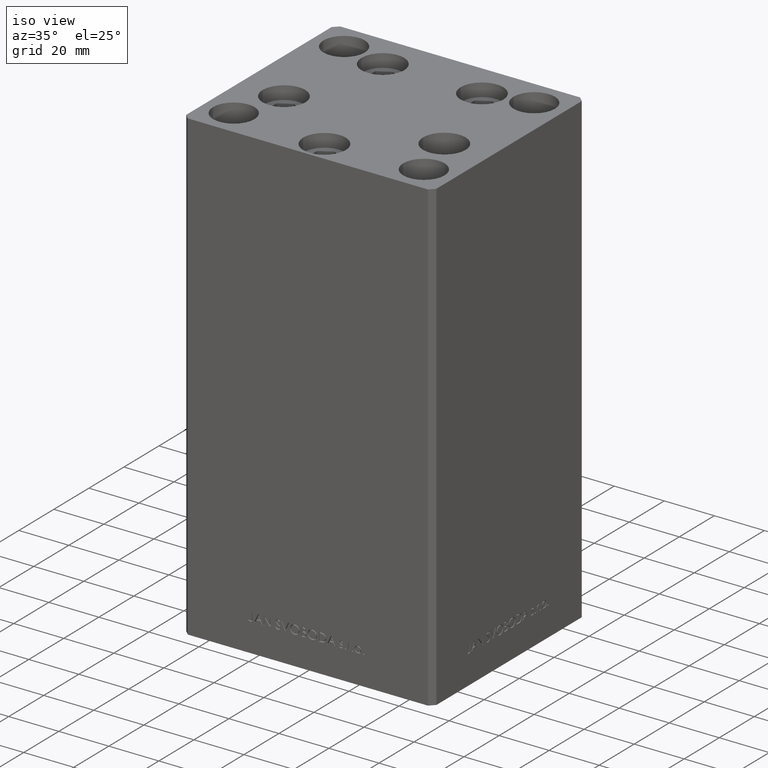
[diagram: clean part render]
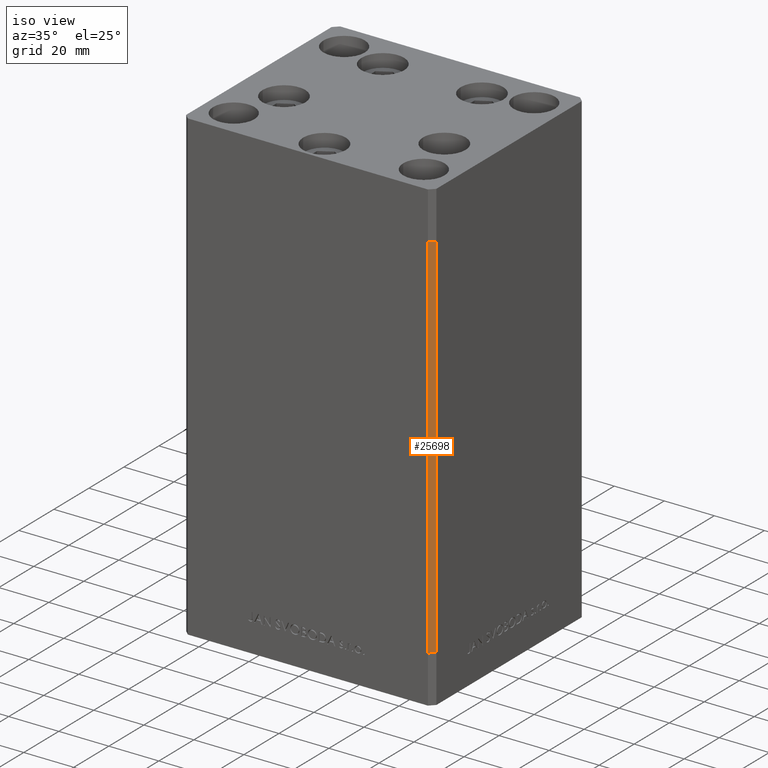
[diagram: same view with one face highlighted and labeled with its STEP entity id]
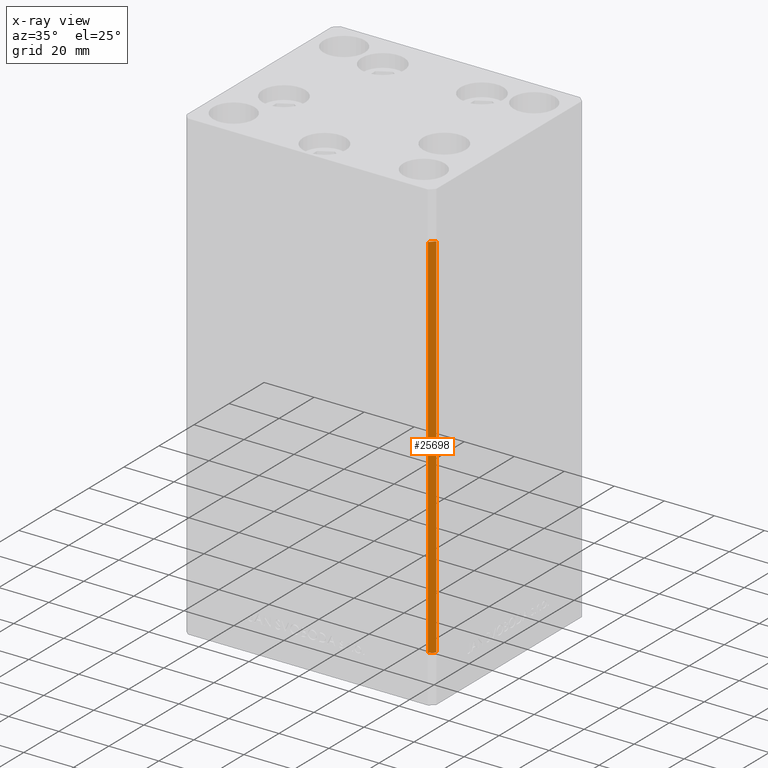
[diagram: x-ray of the same camera — body ghosted, the highlighted face saturated]
A machine part, iso view. The second image highlights one B-rep face of the part: STEP entity #25698.
The next image is the same camera in x-ray: the body ghosted, the highlighted face saturated — about 0% of this face is hidden behind the body in this view.
In plain terms, the highlighted planar face has unit normal (0.7071, -0.7071, 0).
Its self-contained STEP definition (entity closure, byte-faithful):
#1086 = DIRECTION ( 'NONE',  ( 0.7071067811865474617, 0.7071067811865474617, 0.000000000000000000 ) ) ;
#2212 = DIRECTION ( 'NONE',  ( -0.000000000000000000, -0.000000000000000000, -1.000000000000000000 ) ) ;
#4624 = EDGE_LOOP ( 'NONE', ( #39109, #48855, #37163, #47541 ) ) ;
#4843 = VECTOR ( 'NONE', #36072, 1000.000000000000000 ) ;
#5764 = CARTESIAN_POINT ( 'NONE',  ( 47.99999999999998579, -43.50000000000000000, 148.5000000000000000 ) ) ;
#8886 = EDGE_CURVE ( 'NONE', #24753, #12390, #22952, .T. ) ;
#10167 = VERTEX_POINT ( 'NONE', #38577 ) ;
#11291 = CARTESIAN_POINT ( 'NONE',  ( 49.99999999999998579, -41.49999999999999289, 148.5000000000000000 ) ) ;
#12390 = VERTEX_POINT ( 'NONE', #5764 ) ;
#12507 = FACE_OUTER_BOUND ( 'NONE', #4624, .T. ) ;
#13746 = EDGE_CURVE ( 'NONE', #10167, #17885, #31240, .T. ) ;
#16010 = PLANE ( 'NONE',  #42856 ) ;
#16287 = VECTOR ( 'NONE', #41955, 1000.000000000000114 ) ;
#16341 = CARTESIAN_POINT ( 'NONE',  ( 47.99999999999998579, -43.50000000000000000, 0.000000000000000000 ) ) ;
#17885 = VERTEX_POINT ( 'NONE', #16341 ) ;
#20913 = CARTESIAN_POINT ( 'NONE',  ( 47.99999999999998579, -43.50000000000000000, 148.5000000000000000 ) ) ;
#22952 = LINE ( 'NONE', #11291, #23374 ) ;
#23374 = VECTOR ( 'NONE', #45103, 1000.000000000000114 ) ;
#24753 = VERTEX_POINT ( 'NONE', #41069 ) ;
#25698 = ADVANCED_FACE ( 'NONE', ( #12507 ), #16010, .T. ) ;
#27667 = CARTESIAN_POINT ( 'NONE',  ( 49.99999999999998579, -41.49999999999999289, 148.5000000000000000 ) ) ;
#27755 = VECTOR ( 'NONE', #2212, 1000.000000000000000 ) ;
#29764 = EDGE_CURVE ( 'NONE', #24753, #10167, #40011, .T. ) ;
#31240 = LINE ( 'NONE', #49152, #16287 ) ;
#35140 = DIRECTION ( 'NONE',  ( 0.7071067811865475727, -0.7071067811865475727, 0.000000000000000000 ) ) ;
#36072 = DIRECTION ( 'NONE',  ( -0.000000000000000000, -0.000000000000000000, -1.000000000000000000 ) ) ;
#36748 = CARTESIAN_POINT ( 'NONE',  ( 49.99999999999998579, -41.49999999999999289, 148.5000000000000000 ) ) ;
#37163 = ORIENTED_EDGE ( 'NONE', *, *, #8886, .T. ) ;
#37184 = EDGE_CURVE ( 'NONE', #12390, #17885, #43795, .T. ) ;
#38577 = CARTESIAN_POINT ( 'NONE',  ( 49.99999999999998579, -41.49999999999999289, 0.000000000000000000 ) ) ;
#39109 = ORIENTED_EDGE ( 'NONE', *, *, #13746, .F. ) ;
#40011 = LINE ( 'NONE', #36748, #27755 ) ;
#41069 = CARTESIAN_POINT ( 'NONE',  ( 49.99999999999998579, -41.49999999999999289, 148.5000000000000000 ) ) ;
#41955 = DIRECTION ( 'NONE',  ( -0.7071067811865474617, -0.7071067811865474617, 0.000000000000000000 ) ) ;
#42856 = AXIS2_PLACEMENT_3D ( 'NONE', #27667, #35140, #1086 ) ;
#43795 = LINE ( 'NONE', #20913, #4843 ) ;
#45103 = DIRECTION ( 'NONE',  ( -0.7071067811865474617, -0.7071067811865474617, 0.000000000000000000 ) ) ;
#47541 = ORIENTED_EDGE ( 'NONE', *, *, #37184, .T. ) ;
#48855 = ORIENTED_EDGE ( 'NONE', *, *, #29764, .F. ) ;
#49152 = CARTESIAN_POINT ( 'NONE',  ( 49.99999999999998579, -41.49999999999999289, 0.000000000000000000 ) ) ;